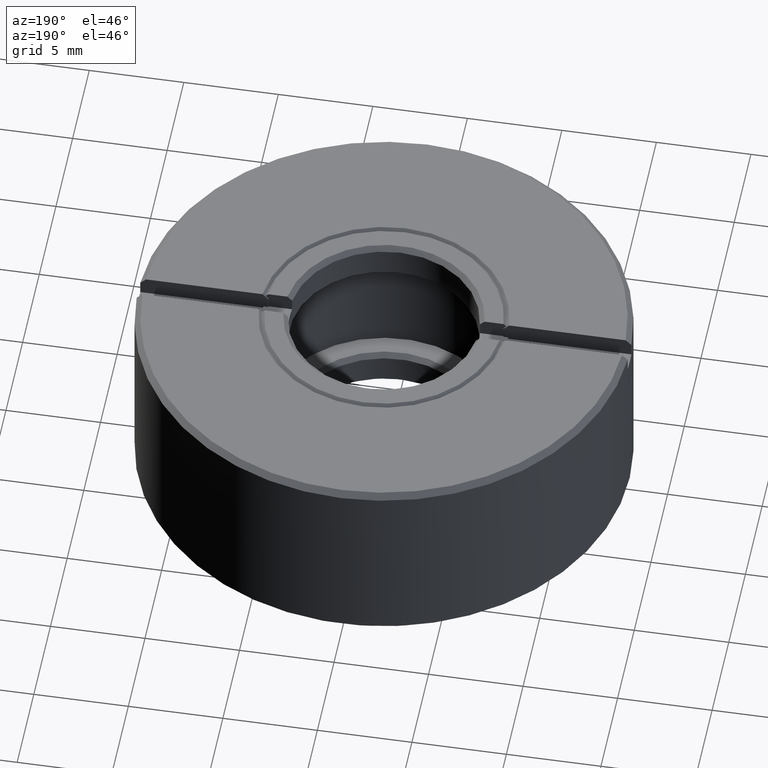
[diagram: clean part render]
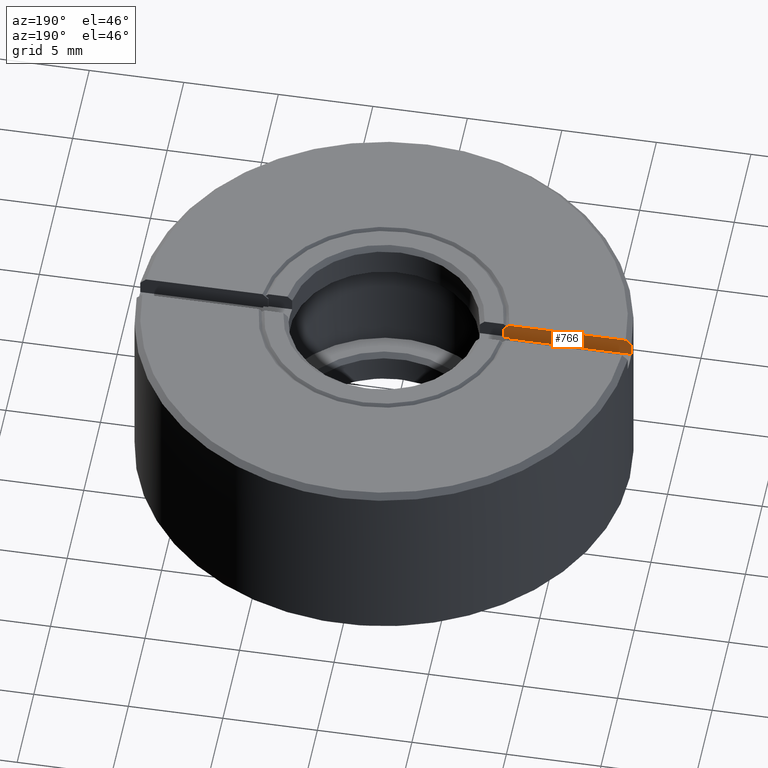
[diagram: same view with one face highlighted and labeled with its STEP entity id]
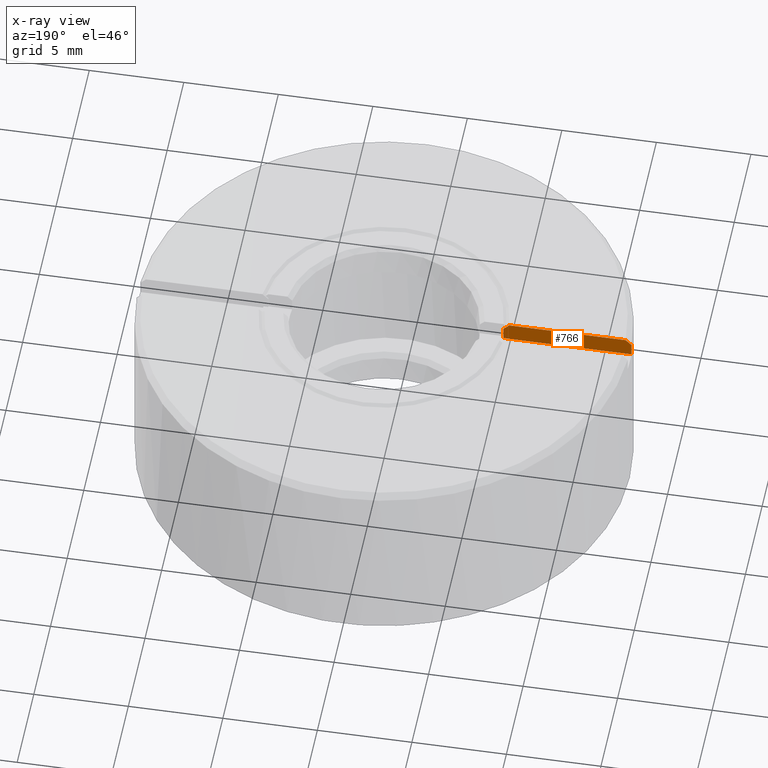
[diagram: x-ray of the same camera — body ghosted, the highlighted face saturated]
A machine part, auxiliary view. The second image highlights one B-rep face of the part: STEP entity #766.
The next image is the same camera in x-ray: the body ghosted, the highlighted face saturated — about 0% of this face is hidden behind the body in this view.
In plain terms, the highlighted planar face has unit normal (0, -1, 0).
Its self-contained STEP definition (entity closure, byte-faithful):
#75 = CARTESIAN_POINT ( 'NONE',  ( -12.68808496188450441, -0.5500000000000000444, 5.000000000000002665 ) ) ;
#112 = ORIENTED_EDGE ( 'NONE', *, *, #676, .F. ) ;
#130 = EDGE_CURVE ( 'NONE', #1093, #136, #637, .T. ) ;
#132 = CARTESIAN_POINT ( 'NONE',  ( 0.000000000000000000, -0.5500000000000000444, 5.000000000000000000 ) ) ;
#136 = VERTEX_POINT ( 'NONE', #307 ) ;
#155 = VECTOR ( 'NONE', #1201, 1000.000000000000000 ) ;
#207 = EDGE_CURVE ( 'NONE', #1258, #1339, #1562, .T. ) ;
#273 = LINE ( 'NONE', #1394, #1134 ) ;
#283 = AXIS2_PLACEMENT_3D ( 'NONE', #297, #1046, #330 ) ;
#292 = EDGE_LOOP ( 'NONE', ( #1065, #567, #1429, #112, #662, #873 ) ) ;
#297 = CARTESIAN_POINT ( 'NONE',  ( -12.98836017363239037, -0.5500000000000000444, 4.000000000000000000 ) ) ;
#304 = CARTESIAN_POINT ( 'NONE',  ( -12.98836017363239037, -0.5500000000000000444, 4.000000000000000000 ) ) ;
#306 = EDGE_CURVE ( 'NONE', #1258, #1093, #501, .T. ) ;
#307 = CARTESIAN_POINT ( 'NONE',  ( -12.98836017363239037, -0.5500000000000000444, 4.699999999999988631 ) ) ;
#327 = EDGE_CURVE ( 'NONE', #1112, #1106, #1594, .T. ) ;
#330 = DIRECTION ( 'NONE',  ( 0.000000000000000000, -0.000000000000000000, -1.000000000000000000 ) ) ;
#335 = CARTESIAN_POINT ( 'NONE',  ( -12.98836017363239037, -0.5500000000000000444, 4.699999999999988631 ) ) ;
#419 = VECTOR ( 'NONE', #854, 1000.000000000000000 ) ;
#430 = EDGE_CURVE ( 'NONE', #136, #1112, #1424, .T. ) ;
#444 = CARTESIAN_POINT ( 'NONE',  ( -12.98836017363239037, -0.5500000000000000444, 4.000000000000000000 ) ) ;
#501 = LINE ( 'NONE', #132, #155 ) ;
#564 = CARTESIAN_POINT ( 'NONE',  ( -6.225752966509352504, -0.5500000000000000444, 4.000000000000000000 ) ) ;
#567 = ORIENTED_EDGE ( 'NONE', *, *, #306, .F. ) ;
#597 = CARTESIAN_POINT ( 'NONE',  ( -6.526867548810337816, -0.5500000000000000444, 5.000000000026148861 ) ) ;
#637 = B_SPLINE_CURVE_WITH_KNOTS ( 'NONE', 3,
 ( #693, #1284, #1177, #335 ),
 .UNSPECIFIED., .F., .F.,
 ( 4, 4 ),
 ( 1.939479807224432123E-18, 0.0004244587174157751232 ),
 .UNSPECIFIED. ) ;
#662 = ORIENTED_EDGE ( 'NONE', *, *, #327, .F. ) ;
#676 = EDGE_CURVE ( 'NONE', #1106, #1339, #273, .T. ) ;
#693 = CARTESIAN_POINT ( 'NONE',  ( -12.68808496188450441, -0.5500000000000000444, 5.000000000000002665 ) ) ;
#719 = CARTESIAN_POINT ( 'NONE',  ( -6.426504545027833082, -0.5500000000000000444, 4.899991445428366177 ) ) ;
#726 = CARTESIAN_POINT ( 'NONE',  ( -6.326133427487278027, -0.5500000000000000444, 4.799991032444184569 ) ) ;
#744 = CARTESIAN_POINT ( 'NONE',  ( 0.000000000000000000, -0.5500000000000000444, 4.000000000000000000 ) ) ;
#754 = DIRECTION ( 'NONE',  ( -0.000000000000000000, 0.000000000000000000, 1.000000000000000000 ) ) ;
#766 = ADVANCED_FACE ( 'NONE', ( #896 ), #1165, .F. ) ;
#854 = DIRECTION ( 'NONE',  ( 1.000000000000000000, 0.000000000000000000, -0.000000000000000000 ) ) ;
#863 = CARTESIAN_POINT ( 'NONE',  ( -6.526867548810337816, -0.5500000000000000444, 5.000000000026148861 ) ) ;
#873 = ORIENTED_EDGE ( 'NONE', *, *, #430, .F. ) ;
#896 = FACE_OUTER_BOUND ( 'NONE', #292, .T. ) ;
#1046 = DIRECTION ( 'NONE',  ( 0.000000000000000000, -1.000000000000000000, 0.000000000000000000 ) ) ;
#1065 = ORIENTED_EDGE ( 'NONE', *, *, #130, .F. ) ;
#1080 = CARTESIAN_POINT ( 'NONE',  ( -6.225752966497114294, -0.5500000000000000444, 4.699999999978986764 ) ) ;
#1093 = VERTEX_POINT ( 'NONE', #75 ) ;
#1106 = VERTEX_POINT ( 'NONE', #564 ) ;
#1112 = VERTEX_POINT ( 'NONE', #444 ) ;
#1134 = VECTOR ( 'NONE', #754, 1000.000000000000000 ) ;
#1165 = PLANE ( 'NONE',  #283 ) ;
#1167 = DIRECTION ( 'NONE',  ( 0.000000000000000000, -0.000000000000000000, -1.000000000000000000 ) ) ;
#1177 = CARTESIAN_POINT ( 'NONE',  ( -12.88826949536930400, -0.5500000000000000444, 4.800001059946461091 ) ) ;
#1201 = DIRECTION ( 'NONE',  ( -1.000000000000000000, -0.000000000000000000, 0.000000000000000000 ) ) ;
#1258 = VERTEX_POINT ( 'NONE', #863 ) ;
#1274 = CARTESIAN_POINT ( 'NONE',  ( -6.225752966497114294, -0.5500000000000000444, 4.699999999978986764 ) ) ;
#1284 = CARTESIAN_POINT ( 'NONE',  ( -12.78817778314701492, -0.5500000000000000444, 4.900001085019417779 ) ) ;
#1321 = VECTOR ( 'NONE', #1167, 1000.000000000000000 ) ;
#1339 = VERTEX_POINT ( 'NONE', #1274 ) ;
#1394 = CARTESIAN_POINT ( 'NONE',  ( -6.225752966509352504, -0.5500000000000000444, 4.000000000000000000 ) ) ;
#1424 = LINE ( 'NONE', #304, #1321 ) ;
#1429 = ORIENTED_EDGE ( 'NONE', *, *, #207, .T. ) ;
#1562 = B_SPLINE_CURVE_WITH_KNOTS ( 'NONE', 3,
 ( #597, #719, #726, #1080 ),
 .UNSPECIFIED., .F., .F.,
 ( 4, 4 ),
 ( 2.104908862308935215E-14, 0.0004250529281487873553 ),
 .UNSPECIFIED. ) ;
#1594 = LINE ( 'NONE', #744, #419 ) ;